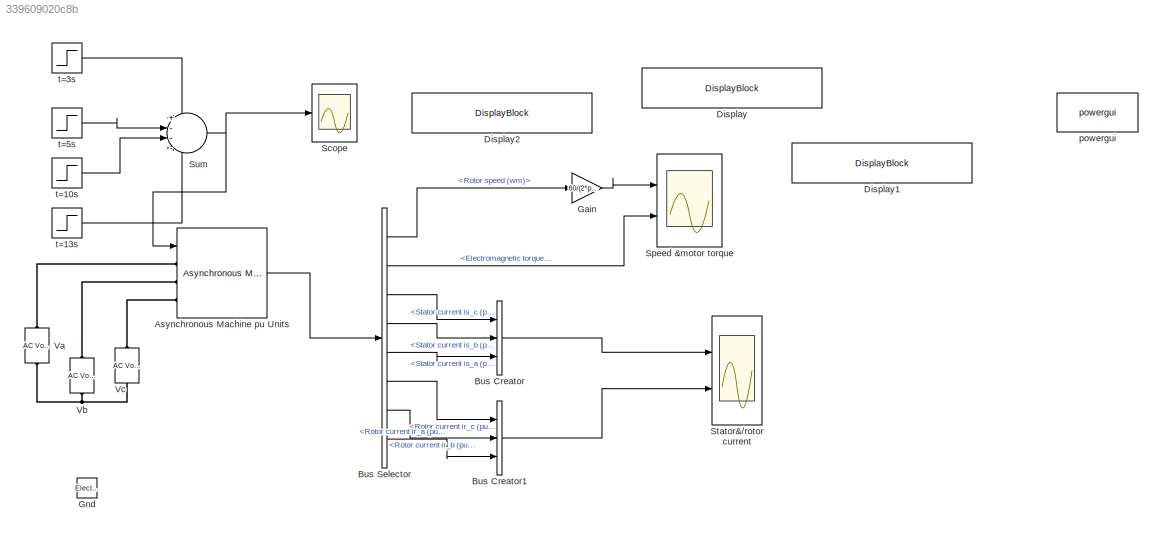
MODEL slx_339609020c8b
KIND model
CONFIG AbsTol = auto
CONFIG EnableMultiTasking = off
CONFIG FixedStep = auto
CONFIG MaxStep = auto
CONFIG MinStep = auto
CONFIG RelTol = 1e-3
CONFIG SampleTimeConstraint = Unconstrained
CONFIG SolverName = VariableStepAuto
CONFIG StartTime = 0.0
CONFIG StopTime = 15
BLOCK [Reference] Asynchronous Machine pu Units  REF=spsAsynchronousMachinepuUnitsLib/Asynchronous Machine
pu Units
  Ports = [1, 1, 0, 0, 0, 3]
  SourceBlock = spsAsynchronousMachinepuUnitsLib/Asynchronous Machine\npu Units
  SourceProductBaseCode = PS
  SourceType = Asynchronous Machine
BLOCK [BusCreator] Bus Creator
  DisplayOption = bar
  InheritFromInputs = on
  Inputs = 3
  Ports = [3, 1]
BLOCK [BusCreator] Bus Creator1
  DisplayOption = bar
  InheritFromInputs = on
  Inputs = 3
  Ports = [3, 1]
BLOCK [BusSelector] Bus Selector
  OutputSignals = Mechanical.Rotor speed (wm),Mechanical.Electromagnetic torque Te (pu),Stator measurements.Stator current is_c (pu),Stator measurements.Stator current is_b (pu),Stator measurements.Stator current is_a (pu),Rotor measurements.Rotor current ir_c (pu),Rotor measurements.Rotor current ir_b (pu),Rotor measurements.Rotor current ir_a (pu)
  Ports = [1, 8]
BLOCK [DisplayBlock] Display
  Format = short
  LabelPosition = Hide
  Transparency = 1
BLOCK [DisplayBlock] Display1
  Format = short
  LabelPosition = Hide
  Transparency = 1
BLOCK [DisplayBlock] Display2
  Format = short
  LabelPosition = Hide
  Transparency = 1
BLOCK [Gain] Gain
  Gain = 60/(2*pi)
BLOCK [Reference] Gnd  REF=simrfV2_lib/Elements/Electrical Reference
  Ports = [0, 0, 0, 0, 0, 1]
  SourceBlock = simrfV2_lib/Elements/Electrical Reference
  SourceProductBaseCode = RB
  SourceType = Electrical Reference
BLOCK [Scope] Scope
  Floating = off
  NumInputPorts = 1
  Ports = [1]
  ScopeSpecificationString = Simulink.scopes.TimeScopeBlockCfg('CurrentConfiguration', extmgr.ConfigurationSet(extmgr.Configuration('Core','General UI',true),extmgr.Configuration('Core','Source UI',true),extmgr.Configuration('Sources','WiredSimulink',true,'DataLogging',true,'DataLoggingVariableName','ScopeData2'),extmgr.Configuration('Visuals','Time Domain',true,'TimeAxisLabels','All','SerializedDisplays',{struct('MinYLimReal...<+1403ch>
BLOCK [Scope] Speed &motor  torque
  Floating = off
  NumInputPorts = 2
  Ports = [2]
  ScopeSpecificationString = Simulink.scopes.TimeScopeBlockCfg('CurrentConfiguration', extmgr.ConfigurationSet(extmgr.Configuration('Core','General UI',true),extmgr.Configuration('Core','Source UI',true),extmgr.Configuration('Sources','WiredSimulink',true,'DataLogging',true),extmgr.Configuration('Visuals','Time Domain',true,'TimeAxisLabels','All','SerializedDisplays',{struct('MinYLimReal','-10','MaxYLimReal','10','YLabelReal'...<+1427ch>
BLOCK [Scope] Stator&//rotor current
  Floating = off
  NumInputPorts = 2
  Ports = [2]
  ScopeSpecificationString = Simulink.scopes.TimeScopeBlockCfg('CurrentConfiguration', extmgr.ConfigurationSet(extmgr.Configuration('Core','General UI',true),extmgr.Configuration('Core','Source UI',true),extmgr.Configuration('Sources','WiredSimulink',true,'DataLoggingVariableName','ScopeData1','DataLogging',true),extmgr.Configuration('Visuals','Time Domain',true,'TimeAxisLabels','All','SerializedDisplays',{struct('MinYLimReal...<+1579ch>
BLOCK [Sum] Sum
  Inputs = +---
  Ports = [4, 1]
BLOCK [Reference] Va  REF=spsACVoltageSourceLib/AC Voltage Source
  Ports = [0, 0, 0, 0, 0, 1, 1]
  SourceBlock = spsACVoltageSourceLib/AC Voltage Source
  SourceProductBaseCode = PS
  SourceType = AC Voltage Source
BLOCK [Reference] Vb  REF=spsACVoltageSourceLib/AC Voltage Source
  Ports = [0, 0, 0, 0, 0, 1, 1]
  SourceBlock = spsACVoltageSourceLib/AC Voltage Source
  SourceProductBaseCode = PS
  SourceType = AC Voltage Source
BLOCK [Reference] Vc  REF=spsACVoltageSourceLib/AC Voltage Source
  Ports = [0, 0, 0, 0, 0, 1, 1]
  SourceBlock = spsACVoltageSourceLib/AC Voltage Source
  SourceProductBaseCode = PS
  SourceType = AC Voltage Source
BLOCK [Reference] powergui  REF=spspowerguiLib/powergui
  Ports = []
  Priority = 1
  SourceBlock = spspowerguiLib/powergui
  SourceProductBaseCode = PS
  SourceType = PSB option menu block
BLOCK [Step] t=10s
  After = 6.68
  SampleTime = 0
  Time = 10
BLOCK [Step] t=13s
  After = 6.68
  SampleTime = 0
  Time = 13
BLOCK [Step] t=3s
  After = 26.72
  SampleTime = 0
  Time = 3
BLOCK [Step] t=5s
  After = 13.36
  SampleTime = 0
  Time = 5
LINE Asynchronous Machine pu Units:1 -> Bus Selector:1
LINE Bus Creator1:1 -> Stator&//rotor current:2
LINE Bus Creator:1 -> Stator&//rotor current:1
LINE Bus Selector:1 -> Gain:1
LINE Bus Selector:2 -> Speed &motor  torque:2
LINE Bus Selector:3 -> Bus Creator:1
LINE Bus Selector:4 -> Bus Creator:2
LINE Bus Selector:5 -> Bus Creator:3
LINE Bus Selector:6 -> Bus Creator1:1
LINE Bus Selector:7 -> Bus Creator1:2
LINE Bus Selector:8 -> Bus Creator1:3
LINE Gain:1 -> Speed &motor  torque:1
NET Sum:1 -> Asynchronous Machine pu Units:1, Scope:1
LINE t=10s:1 -> Sum:3
LINE t=13s:1 -> Sum:4
LINE t=3s:1 -> Sum:1
LINE t=5s:1 -> Sum:2
PLINE Asynchronous Machine pu Units:LConn1 -- Va:RConn1
PLINE Asynchronous Machine pu Units:LConn2 -- Vb:RConn1
PLINE Asynchronous Machine pu Units:LConn3 -- Vc:RConn1
PNET net1: Va:LConn1 -- Vb:LConn1 -- Vc:LConn1
note: NET lines group one-source signal fan-out (src -> all destinations, sorted); 1:1 wires keep LINE; PNET lines group multi-terminal physical nets as a canonical sorted terminal list (undirected conserving connections); 2-terminal nets keep the pairwise PLINE form
